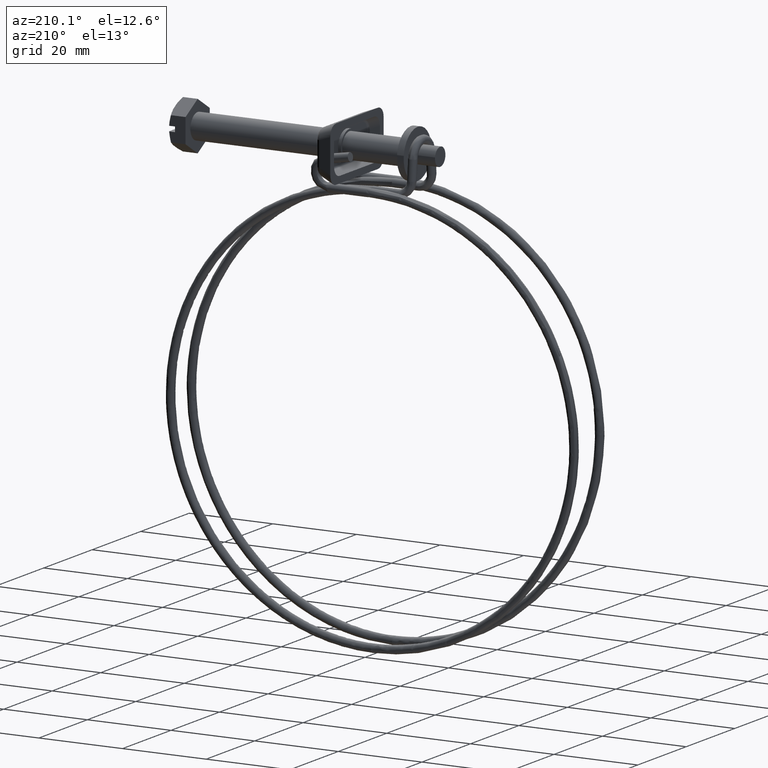
[diagram: clean part render]
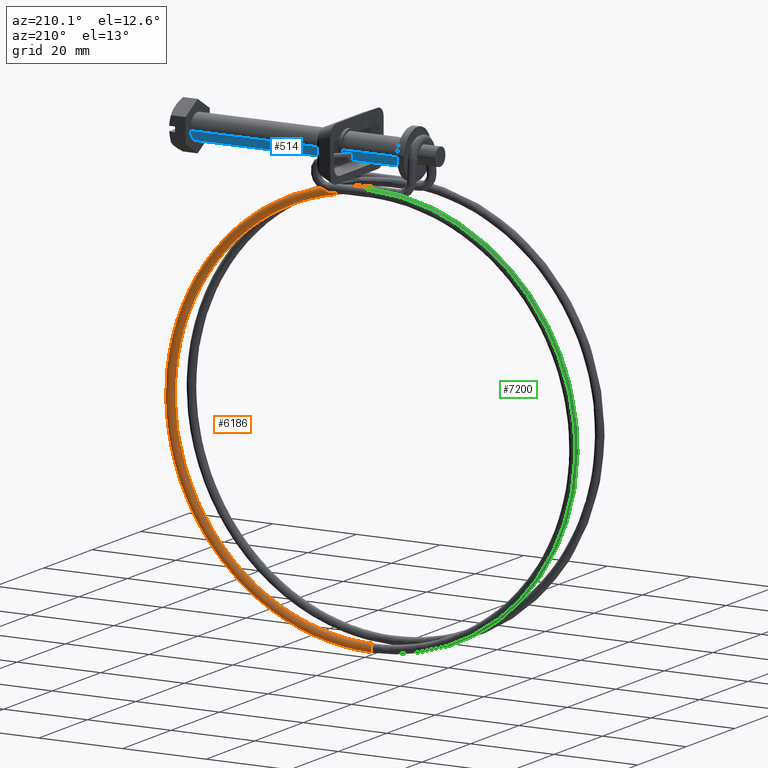
[diagram: same view with three faces highlighted in distinct colors, each labeled with its STEP entity id]
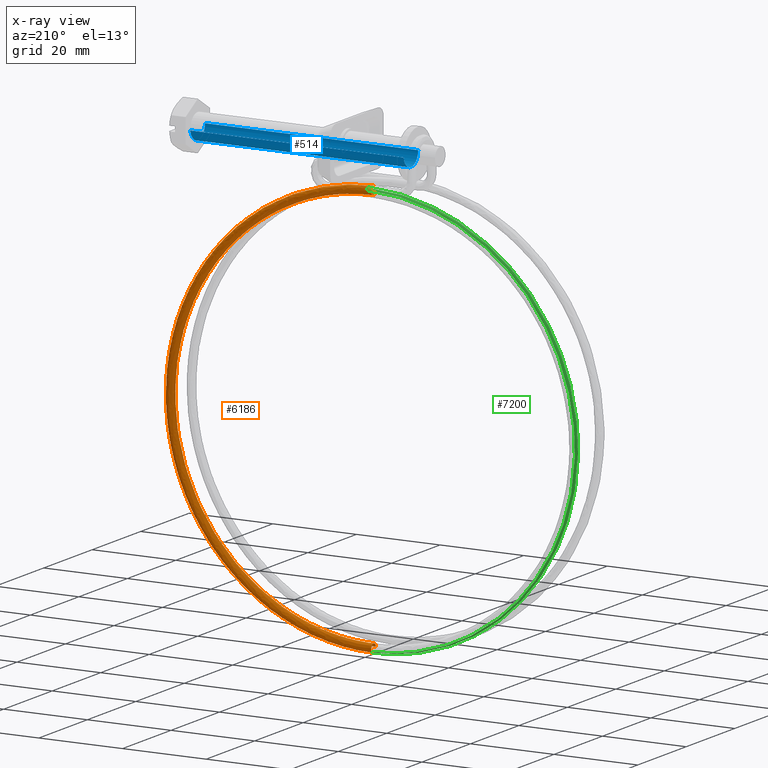
[diagram: x-ray of the same camera — body ghosted, the three highlighted faces saturated]
A machine part, auxiliary view with three faces highlighted in distinct colors.
The next image is the same camera in x-ray (body ghosted, the three faces saturated) — at least one of them is partly hidden behind the body in this view.
Their STEP definitions:

[orange] entity #6186 — the highlighted face is a freeform B-spline surface patch.
#5499=CARTESIAN_POINT('',(-44.550000000000999,4.871712610888118,-7.029545652404678));
#5500=VERTEX_POINT('',#5499);
#5506=CARTESIAN_POINT('',(-44.550000000000999,4.300002000000000,-8.850001000000111));
#5507=VERTEX_POINT('',#5506);
#5508=CARTESIAN_POINT('',(-44.550000000000999,4.871712610888118,-7.029545652404678));
#5509=CARTESIAN_POINT('',(-44.550000000000999,5.300002000000002,-7.327986742472877));
#5510=CARTESIAN_POINT('',(-44.550000000000999,5.300002000000000,-7.850001000000110));
#5511=CARTESIAN_POINT('',(-44.550000000000999,5.300002000000001,-8.850001000000111));
#5512=CARTESIAN_POINT('',(-44.550000000000999,4.300002000000000,-8.850001000000111));
#5520=(BOUNDED_CURVE()B_SPLINE_CURVE(2,(#5508,#5509,#5510,#5511,#5512),.UNSPECIFIED.,.F.,.U.)B_SPLINE_CURVE_WITH_KNOTS((3,2,3),(0.098251884124739,0.250000000000000,0.500000000000000),.UNSPECIFIED.)CURVE()GEOMETRIC_REPRESENTATION_ITEM()RATIONAL_B_SPLINE_CURVE((0.860259114788257,0.822216023569672,1.0,0.707106781186548,1.0))REPRESENTATION_ITEM(''));
#5521=EDGE_CURVE('',#5500,#5507,#5520,.T.);
#5523=CARTESIAN_POINT('',(-44.550008646995863,3.302436292478754,-7.919733769739439));
#5524=VERTEX_POINT('',#5523);
#5525=CARTESIAN_POINT('',(-44.550000000000999,4.300002000000000,-8.850001000000111));
#5526=CARTESIAN_POINT('',(-44.550004323498435,3.367464701208347,-8.850001000000054));
#5527=CARTESIAN_POINT('',(-44.550008646995863,3.302436292478754,-7.919733769739439));
#5535=(BOUNDED_CURVE()B_SPLINE_CURVE(2,(#5525,#5526,#5527),.UNSPECIFIED.,.F.,.U.)B_SPLINE_CURVE_WITH_KNOTS((3,3),(0.500000000000000,0.737833769604713),.UNSPECIFIED.)CURVE()GEOMETRIC_REPRESENTATION_ITEM()RATIONAL_B_SPLINE_CURVE((1.0,0.721360406711754,0.972880052086449))REPRESENTATION_ITEM(''));
#5536=EDGE_CURVE('',#5507,#5524,#5535,.T.);
#5653=CARTESIAN_POINT('',(-44.549999999983783,4.287435958796786,-6.850079955812890));
#5654=VERTEX_POINT('',#5653);
#5668=CARTESIAN_POINT('',(-44.550000000000999,4.300002000000000,-6.850001000000110));
#5669=VERTEX_POINT('',#5668);
#5670=CARTESIAN_POINT('',(-44.549999999983790,4.287435958796786,-6.850079955812890));
#5671=CARTESIAN_POINT('',(-44.550000000000999,4.293718730687041,-6.850001000000111));
#5672=CARTESIAN_POINT('',(-44.550000000000999,4.300002000000000,-6.850001000000110));
#5680=(BOUNDED_CURVE()B_SPLINE_CURVE(2,(#5670,#5671,#5672),.UNSPECIFIED.,.F.,.U.)B_SPLINE_CURVE_WITH_KNOTS((3,3),(0.997784295457081,1.0),.UNSPECIFIED.)CURVE()GEOMETRIC_REPRESENTATION_ITEM()RATIONAL_B_SPLINE_CURVE((0.994854294574575,0.997404140657940,1.0))REPRESENTATION_ITEM(''));
#5681=EDGE_CURVE('',#5654,#5669,#5680,.T.);
#5683=CARTESIAN_POINT('',(-44.550000000000999,4.300002000000000,-6.850001000000110));
#5684=CARTESIAN_POINT('',(-44.550000000001006,4.614050137268658,-6.850001000000111));
#5685=CARTESIAN_POINT('',(-44.550000000000999,4.871712610888118,-7.029545652404678));
#5693=(BOUNDED_CURVE()B_SPLINE_CURVE(2,(#5683,#5684,#5685),.UNSPECIFIED.,.F.,.U.)B_SPLINE_CURVE_WITH_KNOTS((3,3),(0.0,0.098251884124739),.UNSPECIFIED.)CURVE()GEOMETRIC_REPRESENTATION_ITEM()RATIONAL_B_SPLINE_CURVE((1.0,0.884890757616875,0.860259114788257))REPRESENTATION_ITEM(''));
#5694=EDGE_CURVE('',#5669,#5500,#5693,.T.);
#6051=CARTESIAN_POINT('',(-51.256291253493266,3.300955225206489,-104.335093552443510));
#6052=CARTESIAN_POINT('',(4.606424560683083,3.300955225206487,-112.142344149106380));
#6053=CARTESIAN_POINT('',(3.897629043675368,3.300955225206489,-55.741158089506655));
#6054=CARTESIAN_POINT('',(3.204107038740629,3.300955225206488,-0.555335524089088));
#6055=CARTESIAN_POINT('',(-51.427274756647705,3.300955225206489,-8.389115462253701));
#6056=CARTESIAN_POINT('',(-51.254830881360377,3.301692766542038,-104.324644246067020));
#6057=CARTESIAN_POINT('',(4.595720183275755,3.301692766542037,-112.130194724024240));
#6058=CARTESIAN_POINT('',(3.887079014652538,3.301692766542038,-55.741290672060281));
#6059=CARTESIAN_POINT('',(3.193708032119194,3.301692766542036,-0.567485454884656));
#6060=CARTESIAN_POINT('',(-51.425777150888393,3.301692766542038,-8.399559497274025));
#6061=CARTESIAN_POINT('',(-51.122966380176294,3.368289162162407,-103.381122699727270));
#6062=CARTESIAN_POINT('',(3.629166963370293,3.368289162162409,-111.033160726967200));
#6063=CARTESIAN_POINT('',(2.934462703204945,3.368289162162407,-55.753262231847486));
#6064=CARTESIAN_POINT('',(2.254728309030823,3.368289162162408,-1.664565115402185));
#6065=CARTESIAN_POINT('',(-51.290550634321754,3.368289162162406,-9.342605065789671));
#6066=CARTESIAN_POINT('',(-51.124608892329597,4.312568039885457,-103.392875260824890));
#6067=CARTESIAN_POINT('',(3.641206408378288,4.312568039885457,-111.046825448378780));
#6068=CARTESIAN_POINT('',(2.946328549243418,4.312568039885457,-55.753113113379150));
#6069=CARTESIAN_POINT('',(2.266424296904979,4.312568039885457,-1.650899825203806));
#6070=CARTESIAN_POINT('',(-51.292235023940755,4.312568039885459,-9.330858433500470));
#6071=CARTESIAN_POINT('',(-51.126348190439714,5.312489084089274,-103.405320348226510));
#6072=CARTESIAN_POINT('',(3.653955284486855,5.312489084089273,-111.061295371221450));
#6073=CARTESIAN_POINT('',(2.958893596965091,5.312489084089274,-55.752955208020801));
#6074=CARTESIAN_POINT('',(2.278809477474012,5.312489084089274,-1.636429300058243));
#6075=CARTESIAN_POINT('',(-51.294018667169922,5.312489084089275,-9.318419624265614));
#6076=CARTESIAN_POINT('',(-51.264749850676282,5.299923044205920,-104.395616806407300));
#6077=CARTESIAN_POINT('',(4.668425207329520,5.299923044205920,-112.212714632396840));
#6078=CARTESIAN_POINT('',(3.958735691606741,5.299923044205920,-55.740390160299128));
#6079=CARTESIAN_POINT('',(3.264338952328447,5.299923044205921,-0.484962111664471));
#6080=CARTESIAN_POINT('',(-51.435949014100075,5.299923044205920,-8.328622740424326));
#6081=CARTESIAN_POINT('',(-51.403151510912842,5.287357004322568,-105.385913264588080));
#6082=CARTESIAN_POINT('',(5.682895130172193,5.287357004322568,-113.364133893572230));
#6083=CARTESIAN_POINT('',(4.958577786248392,5.287357004322568,-55.727825112577463));
#6084=CARTESIAN_POINT('',(4.249868427182884,5.287357004322570,0.666505076729286));
#6085=CARTESIAN_POINT('',(-51.577879361030249,5.287357004322569,-7.338825856583028));
#6086=CARTESIAN_POINT('',(-51.401394031074013,4.276983299336892,-105.373338082637660));
#6087=CARTESIAN_POINT('',(5.670012983863849,4.276983299336893,-113.349512709591610));
#6088=CARTESIAN_POINT('',(4.945881389974446,4.276983299336892,-55.727984668597273));
#6089=CARTESIAN_POINT('',(4.237353778300374,4.276983299336893,0.651883284149606));
#6090=CARTESIAN_POINT('',(-51.576077072511296,4.276983299336893,-7.351394694737881));
#6091=CARTESIAN_POINT('',(-51.401376006119364,4.266620767832558,-105.373209109844230));
#6092=CARTESIAN_POINT('',(5.669880862801805,4.266620767832561,-113.349362752720300));
#6093=CARTESIAN_POINT('',(4.945751173990268,4.266620767832558,-55.727986305025709));
#6094=CARTESIAN_POINT('',(4.237225426342410,4.266620767832562,0.651733321036444));
#6095=CARTESIAN_POINT('',(-51.576058587992677,4.266620767832560,-7.351523602468467));
#6103=(BOUNDED_SURFACE()B_SPLINE_SURFACE(2,2,((#6051,#6056,#6061,#6066,#6071,#6076,#6081,#6086,#6091),(#6052,#6057,#6062,#6067,#6072,#6077,#6082,#6087,#6092),(#6053,#6058,#6063,#6068,#6073,#6078,#6083,#6088,#6093),(#6054,#6059,#6064,#6069,#6074,#6079,#6084,#6089,#6094),(#6055,#6060,#6065,#6070,#6075,#6080,#6085,#6090,#6095)),.UNSPECIFIED.,.F.,.F.,.U.)B_SPLINE_SURFACE_WITH_KNOTS((3,2,3),(3,1,2,2,1,3),(0.0,90.939679160522857,180.592821489125700),(0.0,0.024522391879387,1.615102471392091,3.271956720884492,4.928810970376892,4.953411531850220),.UNSPECIFIED.)GEOMETRIC_REPRESENTATION_ITEM()RATIONAL_B_SPLINE_SURFACE(((0.985482177605988,0.981493989200557,0.718822509939086,1.0,0.707106781186548,1.0,0.707106781186548,1.004348805959697,1.008697611919394),(0.642135699747741,0.639537014342118,0.468381474473210,0.651595446715910,0.460747558963097,0.651595446715910,0.460747558963097,0.654429108877899,0.657262771039889),(0.985482177605988,0.981493989200557,0.718822509939086,1.0,0.707106781186548,1.0,0.707106781186548,1.004348805959697,1.008697611919394),(0.646993072172543,0.644374729266433,0.471924500128516,0.656524376467437,0.464232838614394,0.656524376467437,0.464232838614394,0.659379473588504,0.662234570709572),(0.975904868660899,0.971955439061420,0.711836706024199,0.990281601065222,0.700234835397490,0.990281601065222,0.700234835397490,0.994588143593713,0.998894686122203)))REPRESENTATION_ITEM('')SURFACE());
#6104=CARTESIAN_POINT('',(-44.549999999999052,4.300002000002107,-103.850001000000010));
#6105=VERTEX_POINT('',#6104);
#6106=CARTESIAN_POINT('',(-44.549999999922072,3.302485887032278,-104.780271342116290));
#6107=VERTEX_POINT('',#6106);
#6108=CARTESIAN_POINT('',(-44.549999999999052,4.300002000002107,-103.850001000000010));
#6109=CARTESIAN_POINT('',(-44.549999999988252,4.038195655371372,-103.850000495566110));
#6110=CARTESIAN_POINT('',(-44.549999999973359,3.777998799464806,-103.957772896960290));
#6111=CARTESIAN_POINT('',(-44.549999999945143,3.424196145411115,-104.311556064557190));
#6112=CARTESIAN_POINT('',(-44.549999999931927,3.319730377689378,-104.542534340344900));
#6113=CARTESIAN_POINT('',(-44.549999999922072,3.302485887032278,-104.780271342116290));
#6114=B_SPLINE_CURVE_WITH_KNOTS('',3,(#6108,#6109,#6110,#6111,#6112,#6113),.UNSPECIFIED.,.F.,.U.,(4,2,4),(0.500000000000000,0.625000000000000,0.738888458198832),.UNSPECIFIED.);
#6115=EDGE_CURVE('',#6105,#6107,#6114,.T.);
#6116=ORIENTED_EDGE('',*,*,#6115,.T.);
#6117=CARTESIAN_POINT('',(-44.549999999922072,3.302485887032279,-104.780271342116270));
#6118=CARTESIAN_POINT('',(4.492715618604372,3.302485887034519,-104.780271342037540));
#6119=CARTESIAN_POINT('',(3.876442898153986,3.302460778154162,-55.741425866798899));
#6120=CARTESIAN_POINT('',(3.275466075352614,3.302436292476567,-7.919725230726249));
#6121=CARTESIAN_POINT('',(-44.550008646995863,3.302436292478754,-7.919733769739439));
#6129=(BOUNDED_CURVE()B_SPLINE_CURVE(2,(#6117,#6118,#6119,#6120,#6121),.UNSPECIFIED.,.F.,.U.)B_SPLINE_CURVE_WITH_KNOTS((3,2,3),(-3.822326489115639,-2.0,-0.208790384105663),.UNSPECIFIED.)CURVE()GEOMETRIC_REPRESENTATION_ITEM()RATIONAL_B_SPLINE_CURVE((0.922371478317655,0.667193238145561,0.977505800795127,0.672491935568123,0.913821838716828))REPRESENTATION_ITEM(''));
#6130=EDGE_CURVE('',#6107,#5524,#6129,.T.);
#6131=ORIENTED_EDGE('',*,*,#6130,.T.);
#6132=ORIENTED_EDGE('',*,*,#5536,.F.);
#6133=ORIENTED_EDGE('',*,*,#5521,.F.);
#6134=ORIENTED_EDGE('',*,*,#5694,.F.);
#6135=ORIENTED_EDGE('',*,*,#5681,.F.);
#6136=CARTESIAN_POINT('',(-44.550013567226713,4.287434287090918,-105.849920169598700));
#6137=VERTEX_POINT('',#6136);
#6138=CARTESIAN_POINT('',(-44.550013567226721,4.287434287090918,-105.849920169598700));
#6139=CARTESIAN_POINT('',(5.575896929012372,4.287434287090803,-105.849933908400630));
#6140=CARTESIAN_POINT('',(4.946012738518294,4.287435133447327,-55.727982092420852));
#6141=CARTESIAN_POINT('',(4.331762560604642,4.287435958796899,-6.850079955845955));
#6142=CARTESIAN_POINT('',(-44.549999999983768,4.287435958796787,-6.850079955812890));
#6150=(BOUNDED_CURVE()B_SPLINE_CURVE(2,(#6138,#6139,#6140,#6141,#6142),.UNSPECIFIED.,.F.,.U.)B_SPLINE_CURVE_WITH_KNOTS((3,2,3),(-3.822326830058763,-2.0,-0.208790604144049),.UNSPECIFIED.)CURVE()GEOMETRIC_REPRESENTATION_ITEM()RATIONAL_B_SPLINE_CURVE((0.943597033440750,0.682546517417882,1.0,0.687967245299271,0.934850492633303))REPRESENTATION_ITEM(''));
#6151=EDGE_CURVE('',#6137,#5654,#6150,.T.);
#6152=ORIENTED_EDGE('',*,*,#6151,.F.);
#6153=CARTESIAN_POINT('',(-44.549999999999052,4.300002000002107,-105.850001000000010));
#6154=VERTEX_POINT('',#6153);
#6155=CARTESIAN_POINT('',(-44.550013567226713,4.287434287090918,-105.849920169598700));
#6156=CARTESIAN_POINT('',(-44.550009045284433,4.291622911119429,-105.849974632451800));
#6157=CARTESIAN_POINT('',(-44.550004522766592,4.295812249115727,-105.850001617474210));
#6158=CARTESIAN_POINT('',(-44.549999999999052,4.300002000002107,-105.850001000000010));
#6159=B_SPLINE_CURVE_WITH_KNOTS('',3,(#6155,#6156,#6157,#6158),.UNSPECIFIED.,.F.,.U.,(4,4),(0.997999545185233,1.0),.UNSPECIFIED.);
#6160=EDGE_CURVE('',#6137,#6154,#6159,.T.);
#6161=ORIENTED_EDGE('',*,*,#6160,.T.);
#6162=CARTESIAN_POINT('',(-44.549999999999052,5.028950799201402,-105.534536873659500));
#6163=VERTEX_POINT('',#6162);
#6164=CARTESIAN_POINT('',(-44.549999999999052,4.300002000002107,-105.850001000000010));
#6165=CARTESIAN_POINT('',(-44.549999999999052,4.561801387801260,-105.850001000000010));
#6166=CARTESIAN_POINT('',(-44.549999999999052,4.821988658765391,-105.742227903610000));
#6167=CARTESIAN_POINT('',(-44.549999999999052,5.014513867677534,-105.549702694697800));
#6168=CARTESIAN_POINT('',(-44.549999999999052,5.021795189512185,-105.542177491636100));
#6169=CARTESIAN_POINT('',(-44.549999999999052,5.028950799201402,-105.534536873659500));
#6170=B_SPLINE_CURVE_WITH_KNOTS('',3,(#6164,#6165,#6166,#6167,#6168,#6169),.UNSPECIFIED.,.F.,.U.,(4,2,4),(0.0,0.125000000000000,0.130000190141369),.UNSPECIFIED.);
#6171=EDGE_CURVE('',#6154,#6163,#6170,.T.);
#6172=ORIENTED_EDGE('',*,*,#6171,.T.);
#6173=CARTESIAN_POINT('',(-44.549999999999052,5.028950799201402,-105.534536873659500));
#6174=CARTESIAN_POINT('',(-44.549999999999052,5.200678629127689,-105.351169305945310));
#6175=CARTESIAN_POINT('',(-44.549999999999052,5.300002000002110,-105.101328014056090));
#6176=CARTESIAN_POINT('',(-44.549999999999052,5.300002000002110,-104.588201612201000));
#6177=CARTESIAN_POINT('',(-44.549999999999052,5.192228903611920,-104.328014341236790));
#6178=CARTESIAN_POINT('',(-44.549999999999052,4.821988658765391,-103.957774096390200));
#6179=CARTESIAN_POINT('',(-44.549999999999052,4.561801387801260,-103.850001000000010));
#6180=CARTESIAN_POINT('',(-44.549999999999052,4.300002000002107,-103.850001000000010));
#6181=B_SPLINE_CURVE_WITH_KNOTS('',3,(#6173,#6174,#6175,#6176,#6177,#6178,#6179,#6180),.UNSPECIFIED.,.F.,.U.,(4,2,2,4),(0.130000190141371,0.250000000000000,0.375000000000000,0.500000000000000),.UNSPECIFIED.);
#6182=EDGE_CURVE('',#6163,#6105,#6181,.T.);
#6183=ORIENTED_EDGE('',*,*,#6182,.T.);
#6184=EDGE_LOOP('',(#6116,#6131,#6132,#6133,#6134,#6135,#6152,#6161,#6172,#6183));
#6185=FACE_OUTER_BOUND('',#6184,.T.);
#6186=ADVANCED_FACE('',(#6185),#6103,.T.);

[blue] entity #514 — the highlighted face is a freeform B-spline surface patch.
#416=CARTESIAN_POINT('',(1.275000000000002,2.976798641476730,-0.372384006239502));
#417=CARTESIAN_POINT('',(1.275000000000001,2.645193774399765,-3.023198491507449));
#418=CARTESIAN_POINT('',(1.275000000000001,-0.026179606495123,-2.999885769192628));
#419=CARTESIAN_POINT('',(1.275000000000001,-3.026065375687751,-2.973706162697505));
#420=CARTESIAN_POINT('',(1.275000000000001,-2.999885769192628,0.026179606495123));
#421=CARTESIAN_POINT('',(-52.306875000000005,2.976798641476730,-0.372384006239502));
#422=CARTESIAN_POINT('',(-52.306875000000012,2.645193774399765,-3.023198491507449));
#423=CARTESIAN_POINT('',(-52.306875000000012,-0.026179606495123,-2.999885769192628));
#424=CARTESIAN_POINT('',(-52.306875000000019,-3.026065375687751,-2.973706162697505));
#425=CARTESIAN_POINT('',(-52.306875000000012,-2.999885769192628,0.026179606495123));
#433=(BOUNDED_SURFACE()B_SPLINE_SURFACE(2,1,((#416,#421),(#417,#422),(#418,#423),(#419,#424),(#420,#425)),.UNSPECIFIED.,.F.,.F.,.U.)B_SPLINE_SURFACE_WITH_KNOTS((3,2,3),(2,2),(0.0,4.572917728599143,9.543480477076473),(0.0,53.581875000000018),.UNSPECIFIED.)GEOMETRIC_REPRESENTATION_ITEM()RATIONAL_B_SPLINE_SURFACE(((0.956886118190660,0.956886118190660),(0.730538238691624,0.730538238691624),(1.0,1.0),(0.707106781186548,0.707106781186548),(1.0,1.0)))REPRESENTATION_ITEM('')SURFACE());
#434=CARTESIAN_POINT('',(0.0,0.0,-3.000000000000115));
#435=VERTEX_POINT('',#434);
#436=CARTESIAN_POINT('',(1.740369E-015,2.976798641427167,-0.372384006635703));
#437=VERTEX_POINT('',#436);
#438=CARTESIAN_POINT('',(0.0,0.0,-3.000000000000115));
#439=CARTESIAN_POINT('',(0.0,2.648095799740391,-3.000000000000114));
#440=CARTESIAN_POINT('',(1.740369E-015,2.976798641427167,-0.372384006635703));
#448=(BOUNDED_CURVE()B_SPLINE_CURVE(2,(#438,#439,#440),.UNSPECIFIED.,.F.,.U.)B_SPLINE_CURVE_WITH_KNOTS((3,3),(0.0,0.228526070984407),.UNSPECIFIED.)CURVE()GEOMETRIC_REPRESENTATION_ITEM()RATIONAL_B_SPLINE_CURVE((1.0,0.732265053946342,0.954005430187600))REPRESENTATION_ITEM(''));
#449=EDGE_CURVE('',#435,#437,#448,.T.);
#450=ORIENTED_EDGE('',*,*,#449,.F.);
#451=CARTESIAN_POINT('',(1.665335E-015,-2.999885769188063,0.026179607018270));
#452=VERTEX_POINT('',#451);
#453=CARTESIAN_POINT('',(1.665335E-015,-2.999885769188063,0.026179607018270));
#454=CARTESIAN_POINT('',(0.0,-3.000000000000115,0.013090052985282));
#455=CARTESIAN_POINT('',(0.0,-3.000000000000115,0.0));
#456=CARTESIAN_POINT('',(0.0,-3.000000000000114,-3.000000000000114));
#457=CARTESIAN_POINT('',(0.0,0.0,-3.000000000000115));
#465=(BOUNDED_CURVE()B_SPLINE_CURVE(2,(#453,#454,#455,#456,#457),.UNSPECIFIED.,.F.,.U.)B_SPLINE_CURVE_WITH_KNOTS((3,2,3),(0.748460105603578,0.750000000000000,1.0),.UNSPECIFIED.)CURVE()GEOMETRIC_REPRESENTATION_ITEM()RATIONAL_B_SPLINE_CURVE((0.996414027958229,0.998195901494397,1.0,0.707106781186547,1.0))REPRESENTATION_ITEM(''));
#466=EDGE_CURVE('',#452,#435,#465,.T.);
#467=ORIENTED_EDGE('',*,*,#466,.F.);
#468=CARTESIAN_POINT('',(-51.0,-2.999885769187746,0.026179607054622));
#469=VERTEX_POINT('',#468);
#470=CARTESIAN_POINT('',(1.665335E-015,-2.999885769188063,0.026179607018270));
#471=CARTESIAN_POINT('',(-51.0,-2.999885769187746,0.026179607054622));
#472=QUASI_UNIFORM_CURVE('',1,(#470,#471),.UNSPECIFIED.,.F.,.U.);
#473=EDGE_CURVE('',#452,#469,#472,.T.);
#474=ORIENTED_EDGE('',*,*,#473,.T.);
#475=CARTESIAN_POINT('',(-51.0,0.0,-3.000000000000115));
#476=VERTEX_POINT('',#475);
#477=CARTESIAN_POINT('',(-51.0,0.0,-3.000000000000115));
#478=CARTESIAN_POINT('',(-50.999999999999993,-3.000000000000114,-3.000000000000114));
#479=CARTESIAN_POINT('',(-51.0,-3.000000000000115,0.0));
#480=CARTESIAN_POINT('',(-51.0,-3.000000000000115,0.013090053021627));
#481=CARTESIAN_POINT('',(-51.0,-2.999885769187746,0.026179607054622));
#489=(BOUNDED_CURVE()B_SPLINE_CURVE(2,(#477,#478,#479,#480,#481),.UNSPECIFIED.,.F.,.U.)B_SPLINE_CURVE_WITH_KNOTS((3,2,3),(0.500000000000000,0.750000000000000,0.751539894400690),.UNSPECIFIED.)CURVE()GEOMETRIC_REPRESENTATION_ITEM()RATIONAL_B_SPLINE_CURVE((1.0,0.707106781186547,1.0,0.998195901489397,0.996414027948352))REPRESENTATION_ITEM(''));
#490=EDGE_CURVE('',#476,#469,#489,.T.);
#491=ORIENTED_EDGE('',*,*,#490,.F.);
#492=CARTESIAN_POINT('',(-51.0,2.976798641426056,-0.372384006644589));
#493=VERTEX_POINT('',#492);
#494=CARTESIAN_POINT('',(-51.0,2.976798641426056,-0.372384006644589));
#495=CARTESIAN_POINT('',(-50.999999999999993,2.648095799724457,-3.000000000000114));
#496=CARTESIAN_POINT('',(-51.0,0.0,-3.000000000000115));
#504=(BOUNDED_CURVE()B_SPLINE_CURVE(2,(#494,#495,#496),.UNSPECIFIED.,.F.,.U.)B_SPLINE_CURVE_WITH_KNOTS((3,3),(0.271473929016600,0.500000000000000),.UNSPECIFIED.)CURVE()GEOMETRIC_REPRESENTATION_ITEM()RATIONAL_B_SPLINE_CURVE((0.954005430185646,0.732265053947522,1.0))REPRESENTATION_ITEM(''));
#505=EDGE_CURVE('',#493,#476,#504,.T.);
#506=ORIENTED_EDGE('',*,*,#505,.F.);
#507=CARTESIAN_POINT('',(1.740369E-015,2.976798641427167,-0.372384006635703));
#508=CARTESIAN_POINT('',(-51.0,2.976798641426056,-0.372384006644589));
#509=QUASI_UNIFORM_CURVE('',1,(#507,#508),.UNSPECIFIED.,.F.,.U.);
#510=EDGE_CURVE('',#437,#493,#509,.T.);
#511=ORIENTED_EDGE('',*,*,#510,.F.);
#512=EDGE_LOOP('',(#450,#467,#474,#491,#506,#511));
#513=FACE_OUTER_BOUND('',#512,.T.);
#514=ADVANCED_FACE('',(#513),#433,.T.);

[green] entity #7200 — the highlighted face is a freeform B-spline surface patch.
#4408=CARTESIAN_POINT('',(-44.550000000001013,6.351426395837967,-6.850859404055653));
#4409=VERTEX_POINT('',#4408);
#4486=CARTESIAN_POINT('',(-44.550000000001013,7.066681206299512,-7.196249796183009));
#4487=VERTEX_POINT('',#4486);
#4499=CARTESIAN_POINT('',(-44.550000000001013,6.351426395837969,-6.850859404055656));
#4500=CARTESIAN_POINT('',(-44.550000000001013,6.613001053980891,-6.861704572077632));
#4501=CARTESIAN_POINT('',(-44.550000000001020,6.868500425768188,-6.980163540896325));
#4502=CARTESIAN_POINT('',(-44.550000000001013,7.052884919069654,-7.180498936578973));
#4503=CARTESIAN_POINT('',(-44.550000000001013,7.059848255361077,-7.188319312303514));
#4504=CARTESIAN_POINT('',(-44.550000000001013,7.066681206299512,-7.196249796183009));
#4505=B_SPLINE_CURVE_WITH_KNOTS('',3,(#4499,#4500,#4501,#4502,#4503,#4504),.UNSPECIFIED.,.F.,.U.,(4,2,4),(0.0,0.125000000000000,0.130000190141398),.UNSPECIFIED.);
#4506=EDGE_CURVE('',#4409,#4487,#4505,.T.);
#6153=CARTESIAN_POINT('',(-44.549999999999052,4.300002000002107,-105.850001000000010));
#6154=VERTEX_POINT('',#6153);
#6162=CARTESIAN_POINT('',(-44.549999999999052,5.028950799201402,-105.534536873659500));
#6163=VERTEX_POINT('',#6162);
#6164=CARTESIAN_POINT('',(-44.549999999999052,4.300002000002107,-105.850001000000010));
#6165=CARTESIAN_POINT('',(-44.549999999999052,4.561801387801260,-105.850001000000010));
#6166=CARTESIAN_POINT('',(-44.549999999999052,4.821988658765391,-105.742227903610000));
#6167=CARTESIAN_POINT('',(-44.549999999999052,5.014513867677534,-105.549702694697800));
#6168=CARTESIAN_POINT('',(-44.549999999999052,5.021795189512185,-105.542177491636100));
#6169=CARTESIAN_POINT('',(-44.549999999999052,5.028950799201402,-105.534536873659500));
#6170=B_SPLINE_CURVE_WITH_KNOTS('',3,(#6164,#6165,#6166,#6167,#6168,#6169),.UNSPECIFIED.,.F.,.U.,(4,2,4),(0.0,0.125000000000000,0.130000190141369),.UNSPECIFIED.);
#6171=EDGE_CURVE('',#6154,#6163,#6170,.T.);
#7089=CARTESIAN_POINT('',(-44.550000000001013,7.066681206299512,-7.196249796183009));
#7090=CARTESIAN_POINT('',(-50.987499832665677,7.066916514512037,-7.196283206665007));
#7091=CARTESIAN_POINT('',(-57.420287667952159,7.040161316479275,-8.476069586878518));
#7092=CARTESIAN_POINT('',(-69.313016757442782,6.938081718842669,-13.402301428012169));
#7093=CARTESIAN_POINT('',(-74.767228198991702,6.862562285759235,-17.046773432026971));
#7094=CARTESIAN_POINT('',(-83.869330599451644,6.673948645751107,-26.149028343503680));
#7095=CARTESIAN_POINT('',(-87.513643647100281,6.560928644775155,-31.603230165185529));
#7096=CARTESIAN_POINT('',(-92.439590233851959,6.314497316876374,-43.495693322040601));
#7097=CARTESIAN_POINT('',(-93.719288072231564,6.181182896579697,-49.929278066162141));
#7098=CARTESIAN_POINT('',(-93.719288072231564,5.914449182748019,-62.801508603682187));
#7099=CARTESIAN_POINT('',(-92.439590233850950,5.781134762459604,-69.235093347794106));
#7100=CARTESIAN_POINT('',(-87.513643647099698,5.534703434544303,-81.127556504668618));
#7101=CARTESIAN_POINT('',(-83.869330599516488,5.421683433573019,-86.581758326361935));
#7102=CARTESIAN_POINT('',(-74.767228198924073,5.233069793572100,-95.684013237795142));
#7103=CARTESIAN_POINT('',(-69.313016757426723,5.157550360495323,-99.328485241852292));
#7104=CARTESIAN_POINT('',(-57.420287667964971,5.055470762838218,-104.254717082943300));
#7105=CARTESIAN_POINT('',(-50.987499867709197,5.028951493356827,-105.534536883922200));
#7106=CARTESIAN_POINT('',(-44.549999999999052,5.028950799201402,-105.534536873659500));
#7107=B_SPLINE_CURVE_WITH_KNOTS('',3,(#7089,#7090,#7091,#7092,#7093,#7094,#7095,#7096,#7097,#7098,#7099,#7100,#7101,#7102,#7103,#7104,#7105,#7106),.UNSPECIFIED.,.F.,.U.,(4,2,2,2,2,2,2,2,4),(0.075160743310731,0.132964842787927,0.190768942265123,0.248573041742318,0.306377141219513,0.364181240696709,0.421985340173905,0.479789439651100,0.537593539128296),.UNSPECIFIED.);
#7108=EDGE_CURVE('',#4487,#6163,#7107,.T.);
#7114=CARTESIAN_POINT('',(-44.550000000000999,6.351426395837965,-6.850859404055650));
#7115=CARTESIAN_POINT('',(-51.030779519322699,6.351662483191140,-6.850893150899625));
#7116=CARTESIAN_POINT('',(-57.506814973868700,6.324728203308645,-8.139283857371465));
#7117=CARTESIAN_POINT('',(-69.479491965382906,6.221962382035760,-13.098631980055909));
#7118=CARTESIAN_POINT('',(-74.970364922753802,6.145935306088274,-16.767602184606471));
#7119=CARTESIAN_POINT('',(-84.133641724079553,5.956054007561439,-25.931032687550601));
#7120=CARTESIAN_POINT('',(-87.802443898378655,5.842274495622345,-31.421887544295299));
#7121=CARTESIAN_POINT('',(-92.761489890028344,5.594187292613895,-43.394261132910067));
#7122=CARTESIAN_POINT('',(-94.049785375954400,5.459977156076795,-49.871072005841462));
#7123=CARTESIAN_POINT('',(-94.049785375954400,5.191451313590094,-62.829788398216152));
#7124=CARTESIAN_POINT('',(-92.761489889983451,5.057241177061245,-69.306599271136605));
#7125=CARTESIAN_POINT('',(-87.802443898421842,4.809153974036275,-81.278972859773390));
#7126=CARTESIAN_POINT('',(-84.133641724168399,4.695374462104593,-86.769827716548448));
#7127=CARTESIAN_POINT('',(-74.970364922662213,4.505493163579491,-95.933258219408714));
#7128=CARTESIAN_POINT('',(-69.479491965325906,4.429466087638501,-99.602228423955808));
#7129=CARTESIAN_POINT('',(-57.506814973922452,4.326700266350903,-104.561576546729700));
#7130=CARTESIAN_POINT('',(-51.030779554623813,4.300002698886186,-105.850001000044000));
#7131=CARTESIAN_POINT('',(-44.549999999999052,4.300002000002107,-105.850001000000010));
#7132=B_SPLINE_CURVE_WITH_KNOTS('',3,(#7114,#7115,#7116,#7117,#7118,#7119,#7120,#7121,#7122,#7123,#7124,#7125,#7126,#7127,#7128,#7129,#7130,#7131),.UNSPECIFIED.,.F.,.U.,(4,2,2,2,2,2,2,2,4),(0.075160743310731,0.132964842787927,0.190768942265123,0.248573041742318,0.306377141219513,0.364181240696709,0.421985340173905,0.479789439651100,0.537593539128296),.UNSPECIFIED.);
#7133=EDGE_CURVE('',#4409,#6154,#7132,.T.);
#7141=CARTESIAN_POINT('',(-43.772305145461679,6.347317494788218,-6.850686169559308));
#7142=CARTESIAN_POINT('',(-43.772376310009840,6.622139726705537,-6.860910533381284));
#7143=CARTESIAN_POINT('',(-43.774317850690061,6.890673362341715,-6.990053325825642));
#7144=CARTESIAN_POINT('',(-43.777547774362539,7.069317727412927,-7.199338559583655));
#7145=CARTESIAN_POINT('',(-44.031533120193181,6.347306071411456,-6.851676979331162));
#7146=CARTESIAN_POINT('',(-44.031580563562763,6.622128304796315,-6.861901252424891));
#7147=CARTESIAN_POINT('',(-44.032874933223070,6.890661980457947,-6.991041569584941));
#7148=CARTESIAN_POINT('',(-44.035028230987528,7.069306412013336,-7.200322685498946));
#7149=CARTESIAN_POINT('',(-50.771173008418828,6.348628868341896,-6.799145078520288));
#7150=CARTESIAN_POINT('',(-50.770603727762762,6.623450991526028,-6.809374157787737));
#7151=CARTESIAN_POINT('',(-50.755072377001063,6.891981660314396,-6.938645599172333));
#7152=CARTESIAN_POINT('',(-50.729234609046117,7.070621087057861,-7.148144851980519));
#7153=CARTESIAN_POINT('',(-63.985740452235433,6.293860673443434,-9.427892498336506));
#7154=CARTESIAN_POINT('',(-63.983961952751038,6.568687794825207,-9.437881018546641));
#7155=CARTESIAN_POINT('',(-63.935440193198701,6.837354826970387,-9.560589427753815));
#7156=CARTESIAN_POINT('',(-63.854719978623287,7.016221109452505,-9.759170499014799));
#7157=CARTESIAN_POINT('',(-80.463348642748599,6.065807714179790,-20.438151112863000));
#7158=CARTESIAN_POINT('',(-80.460062632223327,6.340655705373871,-20.447132269000399));
#7159=CARTESIAN_POINT('',(-80.370412331534183,6.609892116201538,-20.542357354412928));
#7160=CARTESIAN_POINT('',(-80.221271171505933,6.789705609116315,-20.695217499456071));
#7161=CARTESIAN_POINT('',(-91.473020780337364,5.724370742851972,-36.914680689460319));
#7162=CARTESIAN_POINT('',(-91.468727795441040,5.999249963700772,-36.922154777686337));
#7163=CARTESIAN_POINT('',(-91.351604802604371,6.269338394931809,-36.976263411539030));
#7164=CARTESIAN_POINT('',(-91.156760402983011,6.450569298903632,-37.060722723255303));
#7165=CARTESIAN_POINT('',(-95.338266668109625,5.321632038606800,-56.350339470468583));
#7166=CARTESIAN_POINT('',(-95.333620226817175,5.596548089609424,-56.356036182173931));
#7167=CARTESIAN_POINT('',(-95.206854090320064,5.867641336371023,-56.361653693684332));
#7168=CARTESIAN_POINT('',(-94.995967473058897,6.050543839351449,-56.365443758469397));
#7169=CARTESIAN_POINT('',(-91.473008088752806,4.918893716005502,-75.785979834090369));
#7170=CARTESIAN_POINT('',(-91.468715104923362,5.193846597129183,-75.789899170949525));
#7171=CARTESIAN_POINT('',(-91.351592141324147,5.465944658479172,-75.747025605443852));
#7172=CARTESIAN_POINT('',(-91.156747790312352,5.650518758905716,-75.670146498753383));
#7173=CARTESIAN_POINT('',(-80.463351096239123,4.577472259846715,-92.262548354531276));
#7174=CARTESIAN_POINT('',(-80.460065085510607,4.852456369954185,-92.264960620110131));
#7175=CARTESIAN_POINT('',(-80.370414779163454,5.125406433497852,-92.180970504483227));
#7176=CARTESIAN_POINT('',(-80.221273609736599,5.311397914505161,-92.035690400252591));
#7177=CARTESIAN_POINT('',(-63.985739607194709,4.349321820710989,-103.272785105937800));
#7178=CARTESIAN_POINT('',(-63.983961107778697,4.624326805043082,-103.274190008488700));
#7179=CARTESIAN_POINT('',(-63.935439350181831,4.897846367345683,-103.162716638995310));
#7180=CARTESIAN_POINT('',(-63.854719138867857,5.084785259615368,-102.971715726228200));
#7181=CARTESIAN_POINT('',(-50.771173208302343,4.294849815095460,-105.901577179348190));
#7182=CARTESIAN_POINT('',(-50.770603927625523,4.569859784197267,-105.902741521641800));
#7183=CARTESIAN_POINT('',(-50.755072576405666,4.843515344460958,-105.784704961285900));
#7184=CARTESIAN_POINT('',(-50.729234807631407,5.030680481341695,-105.582785598692100));
#7185=CARTESIAN_POINT('',(-44.031533117312570,4.295938370990713,-105.849011488271100));
#7186=CARTESIAN_POINT('',(-44.031580560683693,4.570948240509703,-105.850180637548110));
#7187=CARTESIAN_POINT('',(-44.032874930346679,4.844601082811028,-105.732275323116000));
#7188=CARTESIAN_POINT('',(-44.035028228128148,5.031761698088299,-105.530574303321800));
#7189=CARTESIAN_POINT('',(-43.772305141223001,4.295917839803953,-105.850001000001600));
#7190=CARTESIAN_POINT('',(-43.772376305773442,4.570927711203340,-105.851170058580000));
#7191=CARTESIAN_POINT('',(-43.774317846457741,4.844580604764249,-105.733262273555700));
#7192=CARTESIAN_POINT('',(-43.777547770155167,5.031741305314979,-105.531557143858900));
#7193=B_SPLINE_SURFACE_WITH_KNOTS('',3,3,((#7141,#7145,#7149,#7153,#7157,#7161,#7165,#7169,#7173,#7177,#7181,#7185,#7189),(#7142,#7146,#7150,#7154,#7158,#7162,#7166,#7170,#7174,#7178,#7182,#7186,#7190),(#7143,#7147,#7151,#7155,#7159,#7163,#7167,#7171,#7175,#7179,#7183,#7187,#7191),(#7144,#7148,#7152,#7156,#7160,#7164,#7168,#7172,#7176,#7180,#7184,#7188,#7192)),.UNSPECIFIED.,.F.,.F.,.U.,(4,4),(4,1,1,1,1,1,1,1,1,1,4),(0.0,0.825542824952137),(0.0,0.777689605473188,20.219930176870950,39.662170748268672,59.104411319666397,78.546651891064101,97.988892462462005,117.431133033859690,136.873373605257310,156.315614176655200,157.093303782128690),.UNSPECIFIED.);
#7194=ORIENTED_EDGE('',*,*,#6171,.F.);
#7195=ORIENTED_EDGE('',*,*,#7133,.F.);
#7196=ORIENTED_EDGE('',*,*,#4506,.T.);
#7197=ORIENTED_EDGE('',*,*,#7108,.T.);
#7198=EDGE_LOOP('',(#7194,#7195,#7196,#7197));
#7199=FACE_OUTER_BOUND('',#7198,.T.);
#7200=ADVANCED_FACE('',(#7199),#7193,.T.);